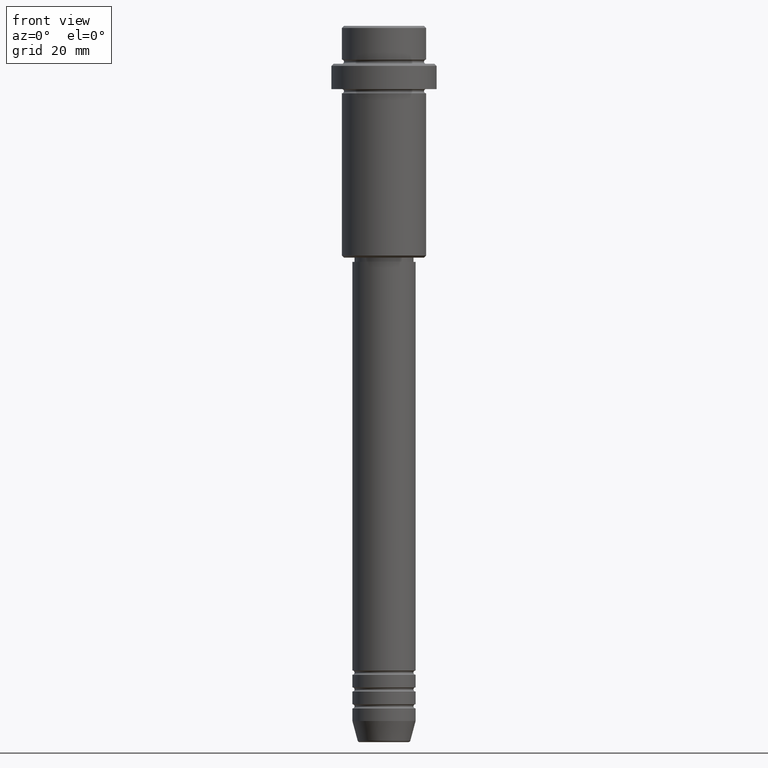
[diagram: clean part render]
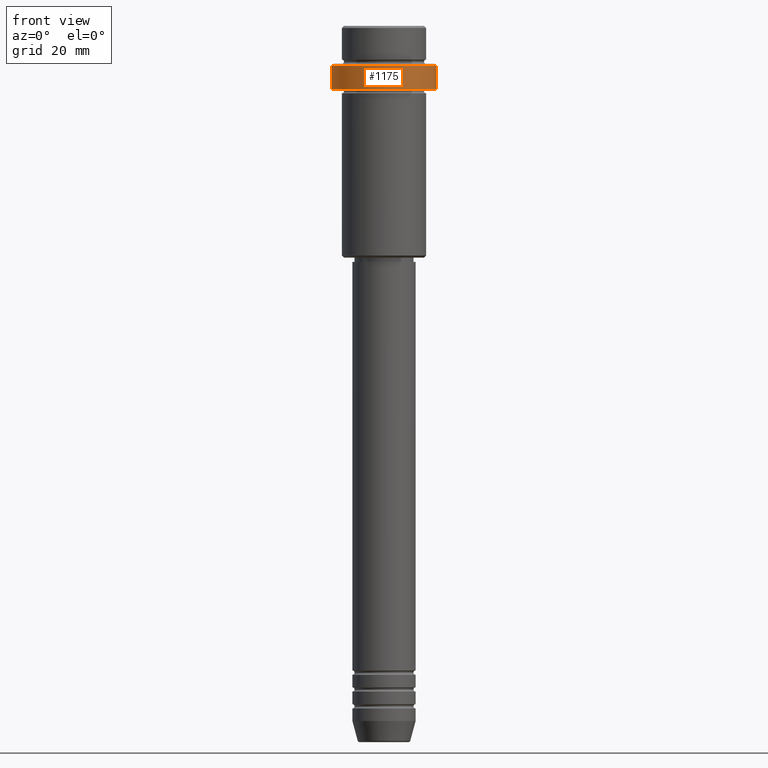
[diagram: same view with one face highlighted and labeled with its STEP entity id]
A machine part, front view. The second image highlights one B-rep face of the part: STEP entity #1175.
In plain terms, the highlighted cylindrical surface (partial cylindrical patch) has radius 12.5 mm, axis along (-0, -0, 1).
Its self-contained STEP definition (entity closure, byte-faithful):
#59 = VERTEX_POINT ( 'NONE', #1053 ) ;
#85 = DIRECTION ( 'NONE',  ( 1.000000000000000000, 0.000000000000000000, 0.000000000000000000 ) ) ;
#110 = CARTESIAN_POINT ( 'NONE',  ( 0.000000000000000000, 0.000000000000000000, -9.499999999999978684 ) ) ;
#111 = LINE ( 'NONE', #871, #143 ) ;
#115 = EDGE_CURVE ( 'NONE', #1259, #59, #111, .T. ) ;
#143 = VECTOR ( 'NONE', #1296, 1000.000000000000000 ) ;
#156 = ORIENTED_EDGE ( 'NONE', *, *, #1329, .T. ) ;
#194 = DIRECTION ( 'NONE',  ( 0.000000000000000000, 0.000000000000000000, -1.000000000000000000 ) ) ;
#253 = ORIENTED_EDGE ( 'NONE', *, *, #1325, .F. ) ;
#254 = VECTOR ( 'NONE', #876, 1000.000000000000000 ) ;
#268 = DIRECTION ( 'NONE',  ( 1.000000000000000000, 0.000000000000000000, 0.000000000000000000 ) ) ;
#338 = VERTEX_POINT ( 'NONE', #1154 ) ;
#393 = CIRCLE ( 'NONE', #738, 12.50000000000000000 ) ;
#490 = CYLINDRICAL_SURFACE ( 'NONE', #558, 12.50000000000000000 ) ;
#521 = LINE ( 'NONE', #998, #254 ) ;
#558 = AXIS2_PLACEMENT_3D ( 'NONE', #1375, #966, #268 ) ;
#586 = CARTESIAN_POINT ( 'NONE',  ( 12.50000000000000000, 0.000000000000000000, -15.00000000000000178 ) ) ;
#653 = DIRECTION ( 'NONE',  ( -0.000000000000000000, -0.000000000000000000, 1.000000000000000000 ) ) ;
#711 = CIRCLE ( 'NONE', #1314, 12.50000000000000000 ) ;
#738 = AXIS2_PLACEMENT_3D ( 'NONE', #110, #194, #971 ) ;
#871 = CARTESIAN_POINT ( 'NONE',  ( 12.50000000000000000, 0.000000000000000000, 0.000000000000000000 ) ) ;
#876 = DIRECTION ( 'NONE',  ( -0.000000000000000000, -0.000000000000000000, 1.000000000000000000 ) ) ;
#921 = ORIENTED_EDGE ( 'NONE', *, *, #115, .T. ) ;
#927 = EDGE_CURVE ( 'NONE', #338, #1259, #711, .T. ) ;
#966 = DIRECTION ( 'NONE',  ( -0.000000000000000000, -0.000000000000000000, 1.000000000000000000 ) ) ;
#971 = DIRECTION ( 'NONE',  ( 1.000000000000000000, 0.000000000000000000, 0.000000000000000000 ) ) ;
#973 = CARTESIAN_POINT ( 'NONE',  ( 0.000000000000000000, 0.000000000000000000, -15.00000000000000178 ) ) ;
#998 = CARTESIAN_POINT ( 'NONE',  ( -12.50000000000000000, 1.530808498934191521E-15, 0.000000000000000000 ) ) ;
#1053 = CARTESIAN_POINT ( 'NONE',  ( 12.50000000000000000, 0.000000000000000000, -9.499999999999978684 ) ) ;
#1129 = EDGE_LOOP ( 'NONE', ( #253, #1371, #921, #156 ) ) ;
#1154 = CARTESIAN_POINT ( 'NONE',  ( -12.50000000000000000, 1.530808498934191521E-15, -15.00000000000000178 ) ) ;
#1175 = ADVANCED_FACE ( 'NONE', ( #1384 ), #490, .T. ) ;
#1196 = VERTEX_POINT ( 'NONE', #1271 ) ;
#1259 = VERTEX_POINT ( 'NONE', #586 ) ;
#1271 = CARTESIAN_POINT ( 'NONE',  ( -12.50000000000000000, 1.530808498934191521E-15, -9.499999999999978684 ) ) ;
#1296 = DIRECTION ( 'NONE',  ( -0.000000000000000000, -0.000000000000000000, 1.000000000000000000 ) ) ;
#1314 = AXIS2_PLACEMENT_3D ( 'NONE', #973, #653, #85 ) ;
#1325 = EDGE_CURVE ( 'NONE', #338, #1196, #521, .T. ) ;
#1329 = EDGE_CURVE ( 'NONE', #59, #1196, #393, .T. ) ;
#1371 = ORIENTED_EDGE ( 'NONE', *, *, #927, .T. ) ;
#1375 = CARTESIAN_POINT ( 'NONE',  ( 0.000000000000000000, 0.000000000000000000, 0.000000000000000000 ) ) ;
#1384 = FACE_OUTER_BOUND ( 'NONE', #1129, .T. ) ;